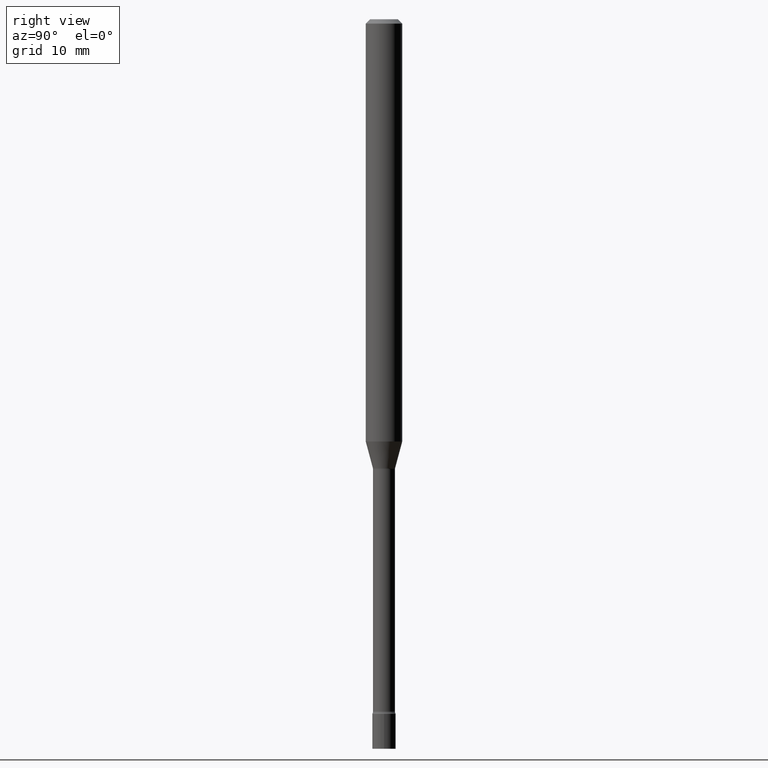
[diagram: clean part render]
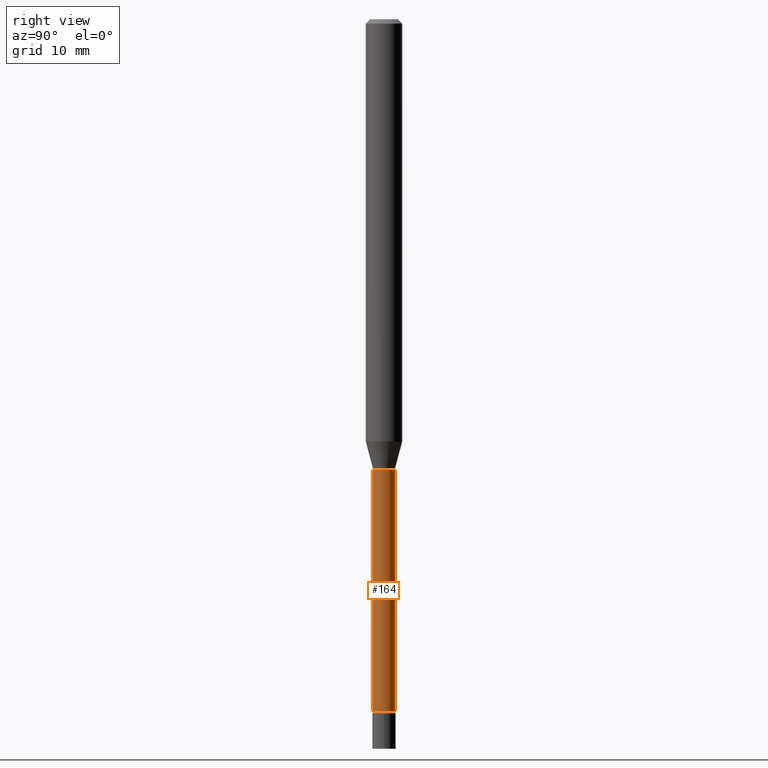
[diagram: same view with one face highlighted and labeled with its STEP entity id]
A machine part, right view. The second image highlights one B-rep face of the part: STEP entity #164.
In plain terms, the highlighted cylindrical surface (edge-blend (fillet) strip) has radius 0.955 mm, axis along (-0, 0, 1).
Its self-contained STEP definition (entity closure, byte-faithful):
#11 = DIRECTION ( 'NONE',  ( -6.982962677686265922E-15, -1.000000000000000000, 0.000000000000000000 ) ) ;
#15 = CARTESIAN_POINT ( 'NONE',  ( 3.770839385115076071E-29, -5.383793176085344105E-15, -1.541974787463811003 ) ) ;
#35 = FACE_OUTER_BOUND ( 'NONE', #67, .T. ) ;
#56 = LINE ( 'NONE', #131, #517 ) ;
#67 = EDGE_LOOP ( 'NONE', ( #79, #120, #376, #236 ) ) ;
#79 = ORIENTED_EDGE ( 'NONE', *, *, #176, .T. ) ;
#90 = CARTESIAN_POINT ( 'NONE',  ( 2.671640686457979762E-16, 0.03760000000000005005, -1.312801124029792938E-16 ) ) ;
#92 = CARTESIAN_POINT ( 'NONE',  ( 5.800294347780268046E-29, -8.281335251809675167E-15, -2.371861204020250025 ) ) ;
#120 = ORIENTED_EDGE ( 'NONE', *, *, #383, .T. ) ;
#131 = CARTESIAN_POINT ( 'NONE',  ( -2.625593966810039482E-16, -0.03760000000000005005, 1.312801124029792938E-16 ) ) ;
#145 = VERTEX_POINT ( 'NONE', #501 ) ;
#160 = DIRECTION ( 'NONE',  ( -2.445461116337205302E-29, 3.491492351143062048E-15, 1.000000000000000000 ) ) ;
#162 = DIRECTION ( 'NONE',  ( -2.445461116337205302E-29, 3.491492351143061653E-15, 1.000000000000000000 ) ) ;
#164 = ADVANCED_FACE ( 'NONE', ( #35 ), #377, .T. ) ;
#167 = DIRECTION ( 'NONE',  ( -6.982962677686265922E-15, -1.000000000000000000, 0.000000000000000000 ) ) ;
#176 = EDGE_CURVE ( 'NONE', #264, #145, #394, .T. ) ;
#209 = CARTESIAN_POINT ( 'NONE',  ( -2.625593966809658857E-16, -0.03760000000000537912, -1.541974787463811003 ) ) ;
#215 = AXIS2_PLACEMENT_3D ( 'NONE', #92, #160, #11 ) ;
#222 = VECTOR ( 'NONE', #358, 39.37007874015748143 ) ;
#236 = ORIENTED_EDGE ( 'NONE', *, *, #392, .F. ) ;
#253 = DIRECTION ( 'NONE',  ( -2.445461116337205302E-29, 3.491492351143062048E-15, 1.000000000000000000 ) ) ;
#260 = CARTESIAN_POINT ( 'NONE',  ( 2.671640686458559082E-16, 0.03759999999999461689, -1.541974787463811003 ) ) ;
#264 = VERTEX_POINT ( 'NONE', #369 ) ;
#272 = CIRCLE ( 'NONE', #329, 0.03759999999999999454 ) ;
#290 = DIRECTION ( 'NONE',  ( -6.982962677686265922E-15, -1.000000000000000000, 3.491492351143061653E-15 ) ) ;
#321 = LINE ( 'NONE', #90, #222 ) ;
#329 = AXIS2_PLACEMENT_3D ( 'NONE', #15, #454, #167 ) ;
#339 = VERTEX_POINT ( 'NONE', #260 ) ;
#358 = DIRECTION ( 'NONE',  ( -2.445461116337205302E-29, 3.491492351143061653E-15, 1.000000000000000000 ) ) ;
#369 = CARTESIAN_POINT ( 'NONE',  ( -2.625593966809462627E-16, -0.03760000000000837672, -2.371861204020250025 ) ) ;
#376 = ORIENTED_EDGE ( 'NONE', *, *, #513, .F. ) ;
#377 = CYLINDRICAL_SURFACE ( 'NONE', #476, 0.03760000000000005005 ) ;
#383 = EDGE_CURVE ( 'NONE', #145, #339, #321, .T. ) ;
#392 = EDGE_CURVE ( 'NONE', #264, #428, #56, .T. ) ;
#394 = CIRCLE ( 'NONE', #215, 0.03760000000000009862 ) ;
#428 = VERTEX_POINT ( 'NONE', #209 ) ;
#429 = CARTESIAN_POINT ( 'NONE',  ( 0.000000000000000000, 0.000000000000000000, 0.000000000000000000 ) ) ;
#454 = DIRECTION ( 'NONE',  ( -2.445461116337205302E-29, 3.491492351143062048E-15, 1.000000000000000000 ) ) ;
#476 = AXIS2_PLACEMENT_3D ( 'NONE', #429, #253, #290 ) ;
#501 = CARTESIAN_POINT ( 'NONE',  ( 2.756905814749772560E-16, 0.03759999999999182052, -2.371861204020250025 ) ) ;
#513 = EDGE_CURVE ( 'NONE', #428, #339, #272, .T. ) ;
#517 = VECTOR ( 'NONE', #162, 39.37007874015748143 ) ;